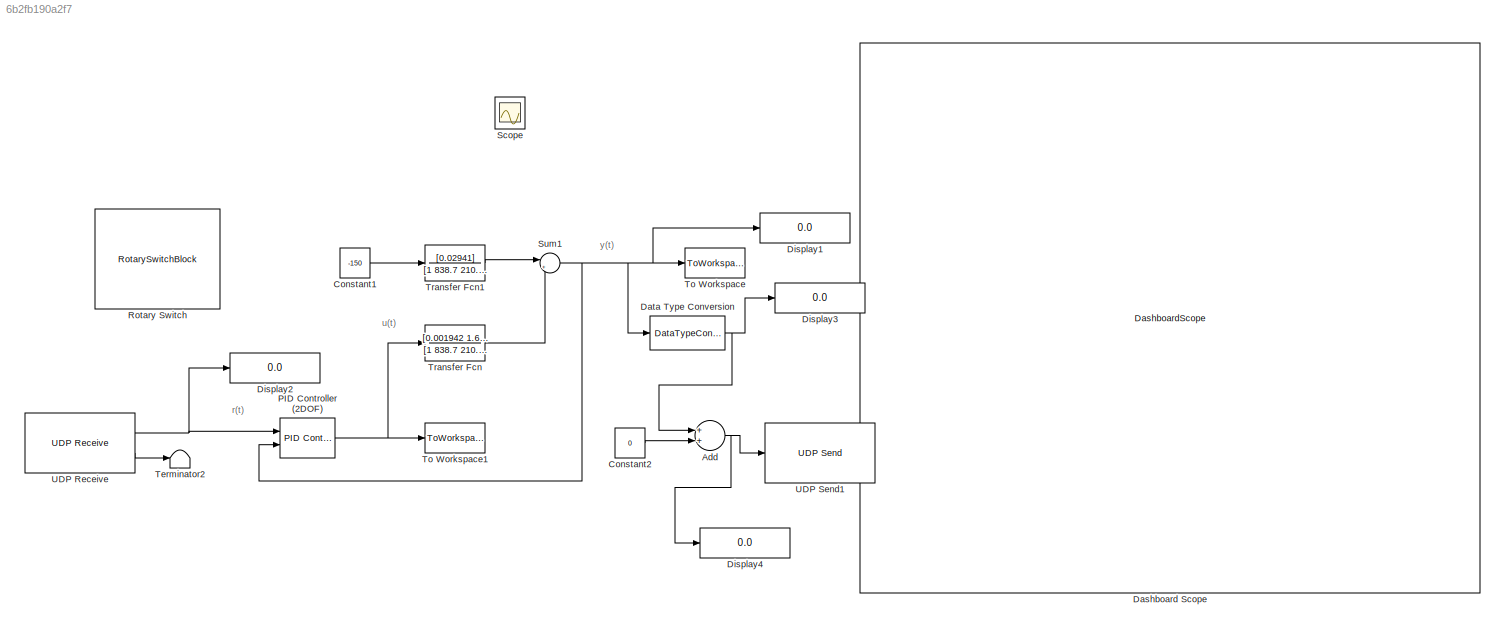
MODEL slx_6b2fb190a2f7
KIND model
CONFIG AbsTol = auto
CONFIG EnableMultiTasking = off
CONFIG FixedStep = auto
CONFIG MaxStep = 1e-3
CONFIG MinStep = auto
CONFIG RelTol = 1e-3
CONFIG SampleTimeConstraint = Unconstrained
CONFIG Solver = VariableStepAuto
CONFIG SolverName = VariableStepAuto
CONFIG StartTime = 0.0
CONFIG StopTime = inf
WORKSPACE source: MAT-file member
WORKSPACE temp = 23
BLOCK [Sum] Add
  InputSameDT = off
  OutDataTypeStr = Inherit: Inherit via internal rule
  Ports = [2, 1]
  SaturateOnIntegerOverflow = off
BLOCK [Constant] Constant1
  Value = -150
BLOCK [Constant] Constant2
  Value = 0
BLOCK [DashboardScope] Dashboard Scope
  WebBlockId = 22
  Ymax = 1000
  Ymin = -200
BLOCK [DataTypeConversion] Data Type Conversion
  ConvertRealWorld = Stored Integer (SI)
  LockScale = on
  OutDataTypeStr = int16
  OutMin = 0
  RndMeth = Nearest
BLOCK [Display] Display1
  Decimation = 1
  Ports = [1]
BLOCK [Display] Display2
  Decimation = 1
  Ports = [1]
BLOCK [Display] Display3
  Decimation = 1
  Ports = [1]
BLOCK [Display] Display4
  Decimation = 1
  Ports = [1]
BLOCK [Reference] PID Controller (2DOF)  REF=simulink/Continuous/PID Controller (2DOF)
  Ports = [2, 1]
  SourceBlock = simulink/Continuous/PID Controller (2DOF)
  SourceProductBaseCode = SL
  SourceProductName = Simulink
  SourceType = PID 2dof
BLOCK [RotarySwitchBlock] Rotary Switch
  WebBlockId = 27
BLOCK [Scope] Scope
  Floating = off
  IOType = viewer
  NumInputPorts = 1
  Ports = []
  ScopeSpecificationString = Simulink.scopes.TimeScopeBlockCfg('CurrentConfiguration', extmgr.ConfigurationSet(extmgr.Configuration('Core','General UI',true),extmgr.Configuration('Core','Source UI',true),extmgr.Configuration('Sources','WiredSimulink',true),extmgr.Configuration('Visuals','Time Domain',true,'SerializedDisplays',{struct('MinYLimReal','-13.50227','MaxYLimReal','121.52047','YLabelReal','','MinYLimMag','0.00000','M...<+1330ch>
BLOCK [Sum] Sum1
  IconShape = round
  InputSameDT = off
  Inputs = |++
  OutDataTypeStr = Inherit: Inherit via internal rule
  Ports = [2, 1]
  SaturateOnIntegerOverflow = off
BLOCK [Terminator] Terminator2
BLOCK [ToWorkspace] To Workspace
  FixptAsFi = on
  MaxDataPoints = inf
  Ports = [1]
  SampleTime = -1
  SaveFormat = Structure With Time
  VariableName = yCLP
BLOCK [ToWorkspace] To Workspace1
  FixptAsFi = on
  MaxDataPoints = inf
  Ports = [1]
  SampleTime = -1
  SaveFormat = Structure With Time
  VariableName = uCLP
BLOCK [TransferFcn] Transfer Fcn
  Denominator = [1 838.7 210.4 0.02941]
  Numerator = [0.001942 1.628 0.4083]
BLOCK [TransferFcn] Transfer Fcn1
  Denominator = [1 838.7 210.4 0.02941]
  Numerator = [0.02941]
BLOCK [Reference] UDP Receive  REF=dspnetwork/UDP Receive
  Ports = [0, 2]
  SourceBlock = dspnetwork/UDP Receive
  SourceProductBaseCode = SL
  SourceProductName = Simulink
  SourceType = UDP Receive
BLOCK [Reference] UDP Send1  REF=dspnetwork/UDP Send
  Ports = [1]
  SourceBlock = dspnetwork/UDP Send
  SourceProductBaseCode = SL
  SourceProductName = Simulink
  SourceType = UDP Send
ANNOTATION (root): r(t)
ANNOTATION (root): u(t)
ANNOTATION (root): y(t)
NET Add:1 -> Display4:1, UDP Send1:1
LINE Constant1:1 -> Transfer Fcn1:1
LINE Constant2:1 -> Add:2
NET Data Type Conversion:1 -> Add:1, Display3:1
NET PID Controller (2DOF):1 -> To Workspace1:1, Transfer Fcn:1
NET Sum1:1 -> Data Type Conversion:1, Display1:1, PID Controller (2DOF):2, To Workspace:1
LINE Transfer Fcn1:1 -> Sum1:1
LINE Transfer Fcn:1 -> Sum1:2
NET UDP Receive:1 -> Display2:1, PID Controller (2DOF):1
LINE UDP Receive:2 -> Terminator2:1
note: NET lines group one-source signal fan-out (src -> all destinations, sorted); 1:1 wires keep LINE
